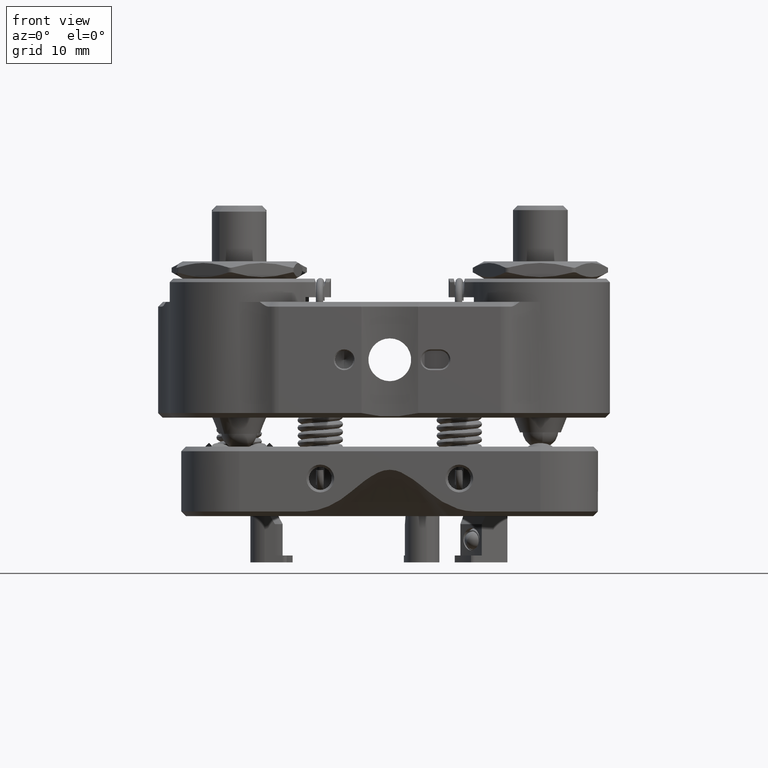
[diagram: clean part render]
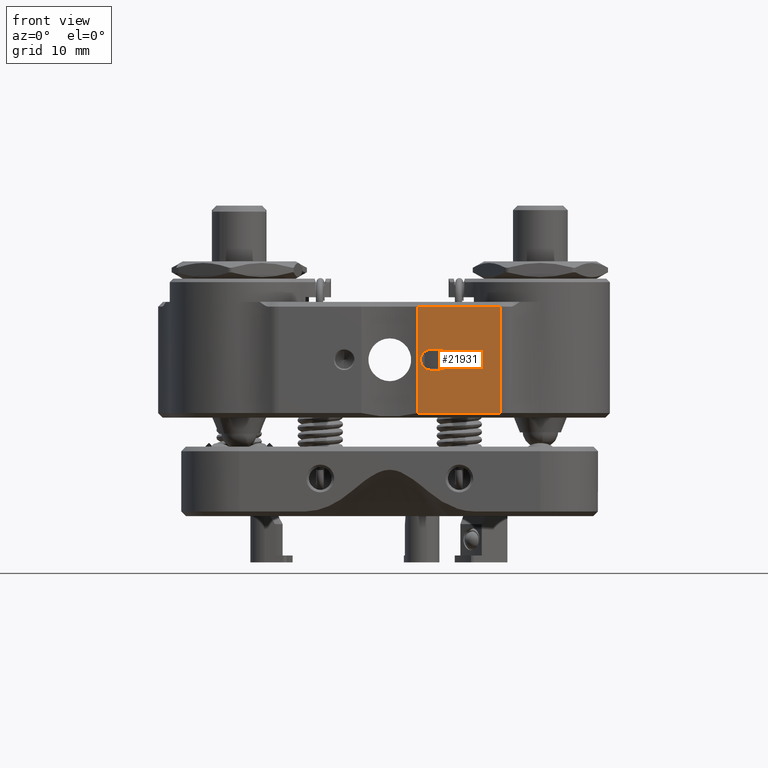
[diagram: same view with one face highlighted and labeled with its STEP entity id]
A machine part, front view. The second image highlights one B-rep face of the part: STEP entity #21931.
In plain terms, the highlighted planar face has unit normal (-0, 1, 0).
Its self-contained STEP definition (entity closure, byte-faithful):
#136 = DIRECTION ( 'NONE',  ( 0.000000000000000000, 0.000000000000000000, -1.000000000000000000 ) ) ;
#520 = CARTESIAN_POINT ( 'NONE',  ( 30.87038173361318272, 3.224097397248392394, 30.88370909685329480 ) ) ;
#538 = DIRECTION ( 'NONE',  ( 1.000000000000000000, 1.339870149023852975E-14, 0.000000000000000000 ) ) ;
#561 = VERTEX_POINT ( 'NONE', #5080 ) ;
#587 = DIRECTION ( 'NONE',  ( -0.000000000000000000, -1.000000000000000000, -0.000000000000000000 ) ) ;
#973 = EDGE_LOOP ( 'NONE', ( #3174, #21136, #7891, #14368, #4802 ) ) ;
#1053 = CARTESIAN_POINT ( 'NONE',  ( 28.47421683122240310, 3.224097397248361307, 37.84315022218402902 ) ) ;
#1386 = EDGE_CURVE ( 'NONE', #13694, #15136, #7208, .T. ) ;
#2092 = DIRECTION ( 'NONE',  ( -1.000000000000000000, -1.400580082737670969E-14, -0.000000000000000000 ) ) ;
#2469 = DIRECTION ( 'NONE',  ( -0.000000000000000000, -0.000000000000000000, -1.000000000000000000 ) ) ;
#2669 = AXIS2_PLACEMENT_3D ( 'NONE', #13169, #18834, #17475 ) ;
#3174 = ORIENTED_EDGE ( 'NONE', *, *, #22370, .F. ) ;
#3965 = EDGE_CURVE ( 'NONE', #20039, #561, #10039, .T. ) ;
#4077 = CARTESIAN_POINT ( 'NONE',  ( 29.87952173361318486, 3.224097397248378627, 32.02670909685328837 ) ) ;
#4286 = CARTESIAN_POINT ( 'NONE',  ( 30.87038173361318272, 3.224097397248392394, 32.02670909685328837 ) ) ;
#4802 = ORIENTED_EDGE ( 'NONE', *, *, #7752, .T. ) ;
#5057 = EDGE_LOOP ( 'NONE', ( #17044, #24394, #11839, #20532 ) ) ;
#5080 = CARTESIAN_POINT ( 'NONE',  ( 29.87952173361318486, 3.224097397248378627, 33.16970909685332458 ) ) ;
#6340 = CARTESIAN_POINT ( 'NONE',  ( 30.87038173361318272, 3.224097397248392394, 33.16970909685332458 ) ) ;
#7208 = LINE ( 'NONE', #14765, #24123 ) ;
#7321 = CARTESIAN_POINT ( 'NONE',  ( 37.53708336398629797, 3.224097397248482988, 40.91670909685328894 ) ) ;
#7752 = EDGE_CURVE ( 'NONE', #9924, #9049, #12141, .T. ) ;
#7891 = ORIENTED_EDGE ( 'NONE', *, *, #16793, .T. ) ;
#8059 = DIRECTION ( 'NONE',  ( -1.000000000000000000, -1.400580082737670969E-14, -0.000000000000000000 ) ) ;
#8871 = CARTESIAN_POINT ( 'NONE',  ( 30.87038173361318272, 3.224097397248392394, 33.16970909685332458 ) ) ;
#9024 = CARTESIAN_POINT ( 'NONE',  ( 28.62641716057851227, 3.224097397248364860, 37.85226476518791117 ) ) ;
#9049 = VERTEX_POINT ( 'NONE', #17843 ) ;
#9912 = CARTESIAN_POINT ( 'NONE',  ( 37.53708336398629797, 3.224097397248482988, 26.18470909685332515 ) ) ;
#9924 = VERTEX_POINT ( 'NONE', #17512 ) ;
#10039 = LINE ( 'NONE', #6340, #11555 ) ;
#10306 = VECTOR ( 'NONE', #538, 1000.000000000000000 ) ;
#10506 = CARTESIAN_POINT ( 'NONE',  ( 28.55029545244687128, 3.224097397248368413, 37.84997405895844480 ) ) ;
#11104 = EDGE_CURVE ( 'NONE', #24190, #20039, #18037, .T. ) ;
#11555 = VECTOR ( 'NONE', #8059, 1000.000000000000000 ) ;
#11566 = FACE_OUTER_BOUND ( 'NONE', #973, .T. ) ;
#11757 = LINE ( 'NONE', #19016, #18488 ) ;
#11771 = LINE ( 'NONE', #19638, #22197 ) ;
#11809 = VERTEX_POINT ( 'NONE', #15955 ) ;
#11839 = ORIENTED_EDGE ( 'NONE', *, *, #13156, .F. ) ;
#12141 = LINE ( 'NONE', #9912, #10306 ) ;
#12529 = AXIS2_PLACEMENT_3D ( 'NONE', #4286, #587, #22939 ) ;
#13156 = EDGE_CURVE ( 'NONE', #561, #11809, #23230, .T. ) ;
#13169 = CARTESIAN_POINT ( 'NONE',  ( 28.47421683122239955, 3.224097397248361307, 40.91670909685328894 ) ) ;
#13196 = EDGE_CURVE ( 'NONE', #24190, #11809, #11757, .T. ) ;
#13354 = DIRECTION ( 'NONE',  ( -0.000000000000000000, -1.000000000000000000, -0.000000000000000000 ) ) ;
#13694 = VERTEX_POINT ( 'NONE', #20725 ) ;
#14223 = CARTESIAN_POINT ( 'NONE',  ( 28.60103291817030779, 3.224097397248364416, 37.85202349075615302 ) ) ;
#14368 = ORIENTED_EDGE ( 'NONE', *, *, #16657, .T. ) ;
#14513 = DIRECTION ( 'NONE',  ( -0.000000000000000000, -0.000000000000000000, -1.000000000000000000 ) ) ;
#14586 = CARTESIAN_POINT ( 'NONE',  ( 28.57563369269956866, 3.224097397248368857, 37.85152052489291208 ) ) ;
#14765 = CARTESIAN_POINT ( 'NONE',  ( 28.47421683122245284, 3.224097397248361307, 37.85226476518790406 ) ) ;
#15136 = VERTEX_POINT ( 'NONE', #16858 ) ;
#15399 = PLANE ( 'NONE',  #2669 ) ;
#15955 = CARTESIAN_POINT ( 'NONE',  ( 29.87952173361318486, 3.224097397248378627, 30.88370909685329124 ) ) ;
#16552 = B_SPLINE_CURVE_WITH_KNOTS ( 'NONE', 3,
 ( #9024, #14223, #14586, #10506, #21620, #16562, #18038 ),
 .UNSPECIFIED., .F., .F.,
 ( 4, 3, 4 ),
 ( 0.000000000000000000, 7.615616707731955688E-05, 0.0001525348171617076174 ),
 .UNSPECIFIED. ) ;
#16562 = CARTESIAN_POINT ( 'NONE',  ( 28.49949966533412393, 3.224097397248361752, 37.84615994807136019 ) ) ;
#16604 = LINE ( 'NONE', #7321, #16884 ) ;
#16657 = EDGE_CURVE ( 'NONE', #23153, #9924, #11771, .T. ) ;
#16793 = EDGE_CURVE ( 'NONE', #15136, #23153, #16552, .T. ) ;
#16858 = CARTESIAN_POINT ( 'NONE',  ( 28.62641716057851227, 3.224097397248364860, 37.85226476518791117 ) ) ;
#16884 = VECTOR ( 'NONE', #14513, 1000.000000000000000 ) ;
#17044 = ORIENTED_EDGE ( 'NONE', *, *, #11104, .F. ) ;
#17362 = FACE_BOUND ( 'NONE', #5057, .T. ) ;
#17475 = DIRECTION ( 'NONE',  ( -1.000000000000000000, -1.339870149023852975E-14, 0.000000000000000000 ) ) ;
#17512 = CARTESIAN_POINT ( 'NONE',  ( 28.47421683122240310, 3.224097397248361307, 26.18470909685332870 ) ) ;
#17843 = CARTESIAN_POINT ( 'NONE',  ( 37.53708336398629797, 3.224097397248482988, 26.18470909685332515 ) ) ;
#18037 = CIRCLE ( 'NONE', #12529, 1.142999999999998240 ) ;
#18038 = CARTESIAN_POINT ( 'NONE',  ( 28.47421683122240310, 3.224097397248361307, 37.84315022218402902 ) ) ;
#18488 = VECTOR ( 'NONE', #2092, 1000.000000000000000 ) ;
#18834 = DIRECTION ( 'NONE',  ( -1.339870149023852975E-14, 1.000000000000000000, 0.000000000000000000 ) ) ;
#19016 = CARTESIAN_POINT ( 'NONE',  ( 30.87038173361318272, 3.224097397248392394, 30.88370909685329124 ) ) ;
#19638 = CARTESIAN_POINT ( 'NONE',  ( 28.47421683122240310, 3.224097397248361307, 40.91670909685328894 ) ) ;
#20039 = VERTEX_POINT ( 'NONE', #8871 ) ;
#20532 = ORIENTED_EDGE ( 'NONE', *, *, #3965, .F. ) ;
#20725 = CARTESIAN_POINT ( 'NONE',  ( 37.53708336398640455, 3.224097397248479435, 37.85226476518804617 ) ) ;
#21136 = ORIENTED_EDGE ( 'NONE', *, *, #1386, .T. ) ;
#21620 = CARTESIAN_POINT ( 'NONE',  ( 28.52488139609037177, 3.224097397248367969, 37.84842296574833398 ) ) ;
#21931 = ADVANCED_FACE ( 'NONE', ( #17362, #11566 ), #15399, .F. ) ;
#22197 = VECTOR ( 'NONE', #2469, 1000.000000000000000 ) ;
#22274 = DIRECTION ( 'NONE',  ( -1.000000000000000000, -1.339870149023852659E-14, -1.612421360227179349E-14 ) ) ;
#22370 = EDGE_CURVE ( 'NONE', #13694, #9049, #16604, .T. ) ;
#22939 = DIRECTION ( 'NONE',  ( 0.000000000000000000, 0.000000000000000000, -1.000000000000000000 ) ) ;
#23153 = VERTEX_POINT ( 'NONE', #1053 ) ;
#23230 = CIRCLE ( 'NONE', #24419, 1.142999999999998240 ) ;
#24123 = VECTOR ( 'NONE', #22274, 1000.000000000000000 ) ;
#24190 = VERTEX_POINT ( 'NONE', #520 ) ;
#24394 = ORIENTED_EDGE ( 'NONE', *, *, #13196, .T. ) ;
#24419 = AXIS2_PLACEMENT_3D ( 'NONE', #4077, #13354, #136 ) ;